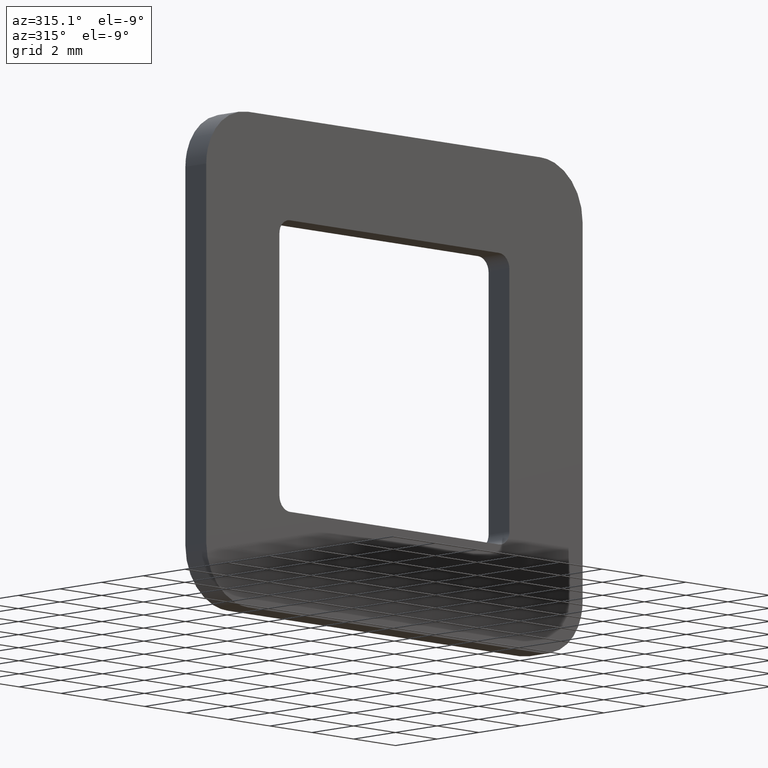
[diagram: clean part render]
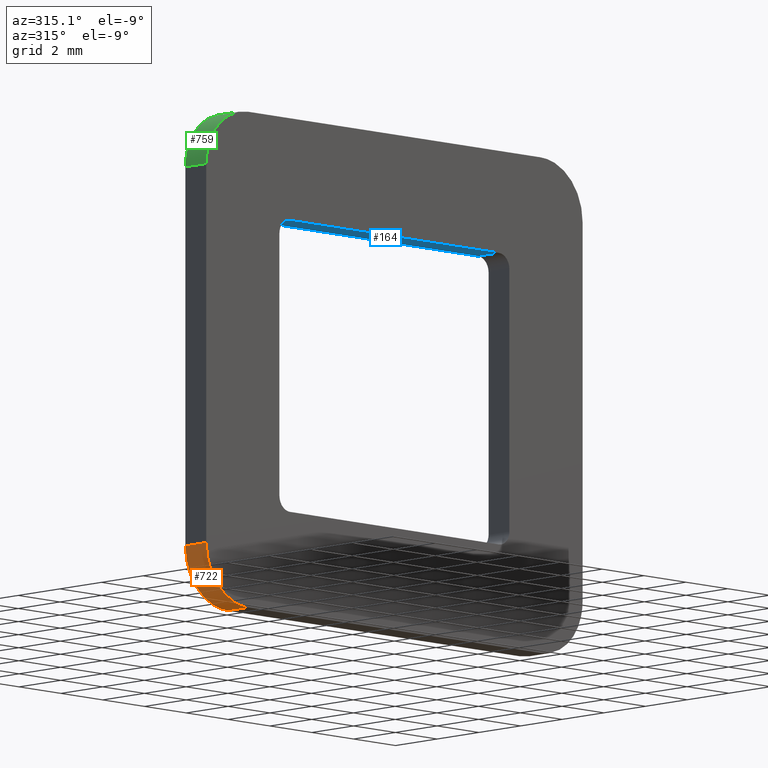
[diagram: same view with three faces highlighted in distinct colors, each labeled with its STEP entity id]
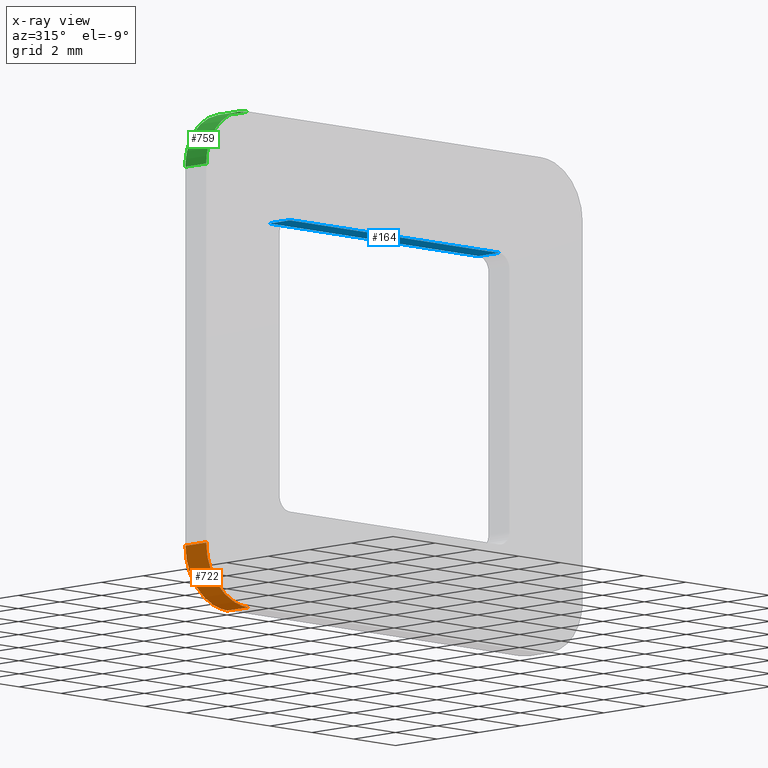
[diagram: x-ray of the same camera — body ghosted, the three highlighted faces saturated]
A machine part, auxiliary view with three faces highlighted in distinct colors.
The next image is the same camera in x-ray (body ghosted, the three faces saturated) — at least one of them is partly hidden behind the body in this view.
Their STEP definitions:

[orange] entity #722 — the highlighted face is a freeform B-spline surface patch.
#398=CARTESIAN_POINT('',(-9.0,0.0,-6.500000000000000));
#399=VERTEX_POINT('',#398);
#405=CARTESIAN_POINT('',(-6.999999965093420,0.0,-8.500000000000000));
#406=VERTEX_POINT('',#405);
#407=CARTESIAN_POINT('',(-9.000000000000002,0.0,-6.500000000000000));
#408=CARTESIAN_POINT('',(-9.000000000000002,0.0,-7.328427134970091));
#409=CARTESIAN_POINT('',(-8.414213550031755,0.0,-7.914213574714435));
#410=CARTESIAN_POINT('',(-7.828427100063511,0.0,-8.500000014458779));
#411=CARTESIAN_POINT('',(-6.999999965093421,0.0,-8.499999999999998));
#419=(BOUNDED_CURVE()B_SPLINE_CURVE(2,(#407,#408,#409,#410,#411),.UNSPECIFIED.,.F.,.U.)B_SPLINE_CURVE_WITH_KNOTS((3,2,3),(0.0,0.500000000000000,1.0),.UNSPECIFIED.)CURVE()GEOMETRIC_REPRESENTATION_ITEM()RATIONAL_B_SPLINE_CURVE((1.0,0.923879530841516,1.0,0.923879530841516,1.0))REPRESENTATION_ITEM(''));
#420=EDGE_CURVE('',#399,#406,#419,.T.);
#554=CARTESIAN_POINT('',(-6.999999965093420,1.0,-8.500000000000000));
#555=VERTEX_POINT('',#554);
#561=CARTESIAN_POINT('',(-9.0,1.0,-6.500000000000000));
#562=VERTEX_POINT('',#561);
#563=CARTESIAN_POINT('',(-9.000000000000002,1.0,-6.500000000000000));
#564=CARTESIAN_POINT('',(-9.000000000000002,1.0,-7.328427134970091));
#565=CARTESIAN_POINT('',(-8.414213550031755,1.0,-7.914213574714435));
#566=CARTESIAN_POINT('',(-7.828427100063511,1.0,-8.500000014458779));
#567=CARTESIAN_POINT('',(-6.999999965093421,1.0,-8.499999999999998));
#575=(BOUNDED_CURVE()B_SPLINE_CURVE(2,(#563,#564,#565,#566,#567),.UNSPECIFIED.,.F.,.U.)B_SPLINE_CURVE_WITH_KNOTS((3,2,3),(0.0,0.500000000000000,1.0),.UNSPECIFIED.)CURVE()GEOMETRIC_REPRESENTATION_ITEM()RATIONAL_B_SPLINE_CURVE((1.0,0.923879530841516,1.0,0.923879530841516,1.0))REPRESENTATION_ITEM(''));
#576=EDGE_CURVE('',#562,#555,#575,.T.);
#688=CARTESIAN_POINT('',(-6.999999965093420,1.0,-8.500000000000000));
#689=CARTESIAN_POINT('',(-6.999999965093420,0.0,-8.500000000000000));
#690=QUASI_UNIFORM_CURVE('',1,(#688,#689),.UNSPECIFIED.,.F.,.U.);
#691=EDGE_CURVE('',#555,#406,#690,.T.);
#698=CARTESIAN_POINT('',(-6.912761225269327,1.025000000000000,-8.498096443163714));
#699=CARTESIAN_POINT('',(-6.912761225269327,-0.025625000000000,-8.498096443163714));
#700=CARTESIAN_POINT('',(-9.152120528918072,1.025000000000000,-8.595868981871968));
#701=CARTESIAN_POINT('',(-9.152120528918072,-0.025625000000000,-8.595868981871968));
#702=CARTESIAN_POINT('',(-8.995085826463834,1.025000000000000,-6.359883815912953));
#703=CARTESIAN_POINT('',(-8.995085826463834,-0.025625000000000,-6.359883815912953));
#711=(BOUNDED_SURFACE()B_SPLINE_SURFACE(1,2,((#698,#700,#702),(#699,#701,#703)),.UNSPECIFIED.,.F.,.F.,.U.)B_SPLINE_SURFACE_WITH_KNOTS((2,2),(3,3),(0.0,1.0),(0.0,3.583485079683971),.UNSPECIFIED.)GEOMETRIC_REPRESENTATION_ITEM()RATIONAL_B_SPLINE_SURFACE(((1.0,0.664513898535122,0.996233561259061),(1.0,0.664513898535122,0.996233561259061)))REPRESENTATION_ITEM('')SURFACE());
#712=ORIENTED_EDGE('',*,*,#420,.F.);
#713=CARTESIAN_POINT('',(-9.0,1.0,-6.500000000000000));
#714=CARTESIAN_POINT('',(-9.0,0.0,-6.500000000000000));
#715=QUASI_UNIFORM_CURVE('',1,(#713,#714),.UNSPECIFIED.,.F.,.U.);
#716=EDGE_CURVE('',#562,#399,#715,.T.);
#717=ORIENTED_EDGE('',*,*,#716,.F.);
#718=ORIENTED_EDGE('',*,*,#576,.T.);
#719=ORIENTED_EDGE('',*,*,#691,.T.);
#720=EDGE_LOOP('',(#712,#717,#718,#719));
#721=FACE_OUTER_BOUND('',#720,.T.);
#722=ADVANCED_FACE('',(#721),#711,.T.);

[blue] entity #164 — the highlighted face is a freeform B-spline surface patch.
#94=CARTESIAN_POINT('',(-5.0,0.0,5.0));
#95=VERTEX_POINT('',#94);
#112=CARTESIAN_POINT('',(-5.0,1.0,5.0));
#113=VERTEX_POINT('',#112);
#129=CARTESIAN_POINT('',(-5.0,1.0,5.0));
#130=CARTESIAN_POINT('',(-5.0,0.0,5.0));
#131=QUASI_UNIFORM_CURVE('',1,(#129,#130),.UNSPECIFIED.,.F.,.U.);
#132=EDGE_CURVE('',#113,#95,#131,.T.);
#137=CARTESIAN_POINT('',(-5.499499979310372,-0.049949998061806,5.0));
#138=CARTESIAN_POINT('',(5.499500221351332,-0.049949998061806,5.0));
#139=CARTESIAN_POINT('',(-5.499499979310372,1.049950024883896,5.0));
#140=CARTESIAN_POINT('',(5.499500221351332,1.049950024883896,5.0));
#141=B_SPLINE_SURFACE_WITH_KNOTS('',1,1,((#137,#139),(#138,#140)),.UNSPECIFIED.,.F.,.F.,.U.,(2,2),(2,2),(0.0,10.999000200661710),(0.041708334948495,0.958291687403247),.UNSPECIFIED.);
#142=CARTESIAN_POINT('',(4.999999973820060,0.0,5.0));
#143=VERTEX_POINT('',#142);
#144=CARTESIAN_POINT('',(4.999999973820060,0.0,5.0));
#145=CARTESIAN_POINT('',(-5.0,0.0,5.0));
#146=QUASI_UNIFORM_CURVE('',1,(#144,#145),.UNSPECIFIED.,.F.,.U.);
#147=EDGE_CURVE('',#143,#95,#146,.T.);
#148=ORIENTED_EDGE('',*,*,#147,.T.);
#149=ORIENTED_EDGE('',*,*,#132,.F.);
#150=CARTESIAN_POINT('',(4.999999973820060,1.0,5.0));
#151=VERTEX_POINT('',#150);
#152=CARTESIAN_POINT('',(4.999999973820060,1.0,5.0));
#153=CARTESIAN_POINT('',(-5.0,1.0,5.0));
#154=QUASI_UNIFORM_CURVE('',1,(#152,#153),.UNSPECIFIED.,.F.,.U.);
#155=EDGE_CURVE('',#151,#113,#154,.T.);
#156=ORIENTED_EDGE('',*,*,#155,.F.);
#157=CARTESIAN_POINT('',(4.999999973820060,1.0,5.0));
#158=CARTESIAN_POINT('',(4.999999973820060,0.0,5.0));
#159=QUASI_UNIFORM_CURVE('',1,(#157,#158),.UNSPECIFIED.,.F.,.U.);
#160=EDGE_CURVE('',#151,#143,#159,.T.);
#161=ORIENTED_EDGE('',*,*,#160,.T.);
#162=EDGE_LOOP('',(#148,#149,#156,#161));
#163=FACE_OUTER_BOUND('',#162,.T.);
#164=ADVANCED_FACE('',(#163),#141,.F.);

[green] entity #759 — the highlighted face is a freeform B-spline surface patch.
#381=CARTESIAN_POINT('',(-7.0,0.0,8.500000000000000));
#382=VERTEX_POINT('',#381);
#383=CARTESIAN_POINT('',(-9.0,0.0,6.500000000000000));
#384=VERTEX_POINT('',#383);
#385=CARTESIAN_POINT('',(-7.0,0.0,8.500000000000000));
#386=CARTESIAN_POINT('',(-9.000000000000002,0.0,8.500000000000002));
#387=CARTESIAN_POINT('',(-9.000000000000002,0.0,6.500000000000000));
#395=(BOUNDED_CURVE()B_SPLINE_CURVE(2,(#385,#386,#387),.UNSPECIFIED.,.F.,.U.)CURVE()GEOMETRIC_REPRESENTATION_ITEM()QUASI_UNIFORM_CURVE()RATIONAL_B_SPLINE_CURVE((1.0,0.707106781186548,1.0))REPRESENTATION_ITEM(''));
#396=EDGE_CURVE('',#382,#384,#395,.T.);
#491=CARTESIAN_POINT('',(-7.0,1.0,8.500000000000000));
#492=VERTEX_POINT('',#491);
#493=CARTESIAN_POINT('',(-9.0,1.0,6.500000000000000));
#494=VERTEX_POINT('',#493);
#495=CARTESIAN_POINT('',(-7.0,1.0,8.500000000000000));
#496=CARTESIAN_POINT('',(-9.000000000000002,1.0,8.500000000000002));
#497=CARTESIAN_POINT('',(-9.000000000000002,1.0,6.500000000000000));
#505=(BOUNDED_CURVE()B_SPLINE_CURVE(2,(#495,#496,#497),.UNSPECIFIED.,.F.,.U.)CURVE()GEOMETRIC_REPRESENTATION_ITEM()QUASI_UNIFORM_CURVE()RATIONAL_B_SPLINE_CURVE((1.0,0.707106781186548,1.0))REPRESENTATION_ITEM(''));
#506=EDGE_CURVE('',#492,#494,#505,.T.);
#608=CARTESIAN_POINT('',(-7.0,1.0,8.500000000000000));
#609=CARTESIAN_POINT('',(-7.0,0.0,8.500000000000000));
#610=QUASI_UNIFORM_CURVE('',1,(#608,#609),.UNSPECIFIED.,.F.,.U.);
#611=EDGE_CURVE('',#492,#382,#610,.T.);
#729=CARTESIAN_POINT('',(-9.0,1.0,6.500000000000000));
#730=CARTESIAN_POINT('',(-9.0,0.0,6.500000000000000));
#731=QUASI_UNIFORM_CURVE('',1,(#729,#730),.UNSPECIFIED.,.F.,.U.);
#732=EDGE_CURVE('',#494,#384,#731,.T.);
#739=CARTESIAN_POINT('',(-8.998096443163714,1.025000000000000,6.412761225269327));
#740=CARTESIAN_POINT('',(-8.998096443163714,-0.025625000000000,6.412761225269327));
#741=CARTESIAN_POINT('',(-9.095868981871970,1.025000000000000,8.652120528918070));
#742=CARTESIAN_POINT('',(-9.095868981871970,-0.025625000000000,8.652120528918070));
#743=CARTESIAN_POINT('',(-6.859883815912955,1.025000000000000,8.495085826463834));
#744=CARTESIAN_POINT('',(-6.859883815912955,-0.025625000000000,8.495085826463834));
#752=(BOUNDED_SURFACE()B_SPLINE_SURFACE(1,2,((#739,#741,#743),(#740,#742,#744)),.UNSPECIFIED.,.F.,.F.,.U.)B_SPLINE_SURFACE_WITH_KNOTS((2,2),(3,3),(0.0,1.0),(0.0,3.583485079683967),.UNSPECIFIED.)GEOMETRIC_REPRESENTATION_ITEM()RATIONAL_B_SPLINE_SURFACE(((1.0,0.664513898535122,0.996233561259061),(1.0,0.664513898535122,0.996233561259061)))REPRESENTATION_ITEM('')SURFACE());
#753=ORIENTED_EDGE('',*,*,#396,.F.);
#754=ORIENTED_EDGE('',*,*,#611,.F.);
#755=ORIENTED_EDGE('',*,*,#506,.T.);
#756=ORIENTED_EDGE('',*,*,#732,.T.);
#757=EDGE_LOOP('',(#753,#754,#755,#756));
#758=FACE_OUTER_BOUND('',#757,.T.);
#759=ADVANCED_FACE('',(#758),#752,.T.);